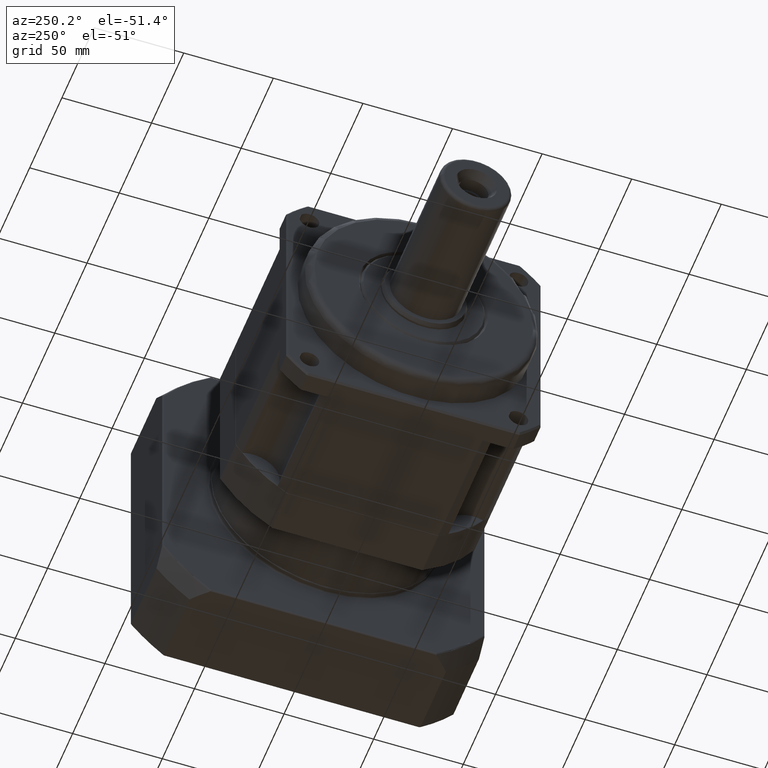
[diagram: clean part render]
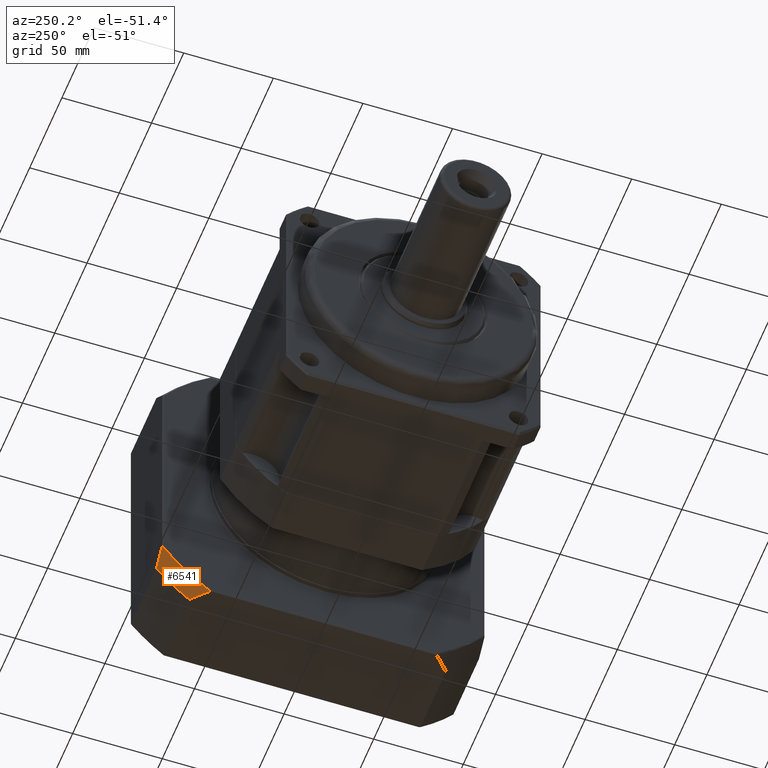
[diagram: same view with one face highlighted and labeled with its STEP entity id]
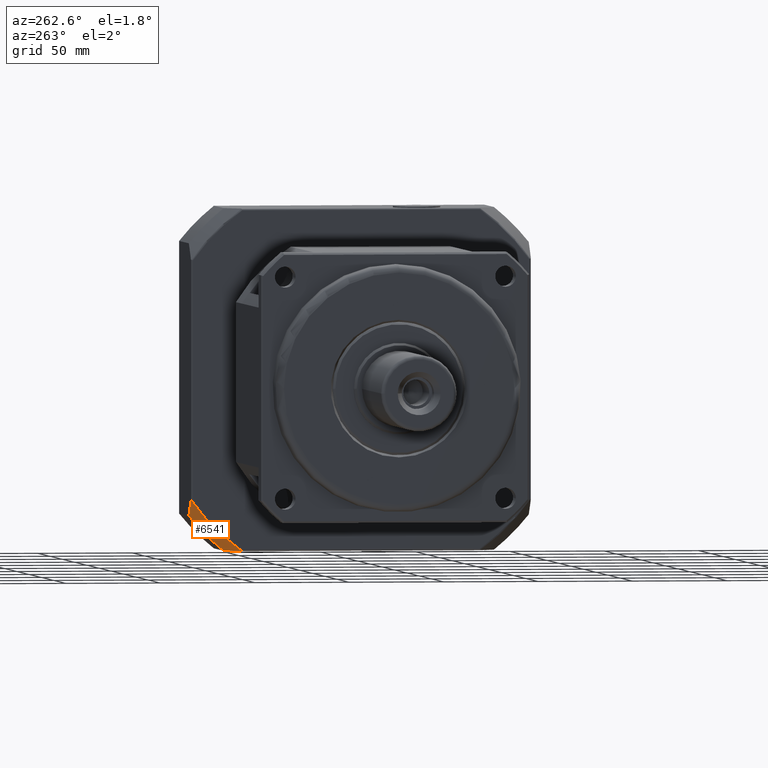
[diagram: same view with one face highlighted and labeled with its STEP entity id]
A machine part, auxiliary view. The second image highlights one B-rep face of the part: STEP entity #6541.
A second angle (auxiliary view) of the same face is appended — the face is thin or edge-on in the first view.
In plain terms, the highlighted spherical surface has radius 130 mm.
Its self-contained STEP definition (entity closure, byte-faithful):
#25=SPHERICAL_SURFACE('',#7149,130.);
#27=B_SPLINE_CURVE_WITH_KNOTS('',3,(#10120,#10121,#10122,#10123,#10124,
#10125,#10126,#10127),.UNSPECIFIED.,.F.,.F.,(4,2,2,4),(0.0211718495459848,
0.034748462194787,0.0605096120079839,0.0862707618211808),.UNSPECIFIED.);
#33=B_SPLINE_CURVE_WITH_KNOTS('',3,(#10189,#10190,#10191,#10192,#10193,
#10194,#10195,#10196),.UNSPECIFIED.,.F.,.F.,(4,2,2,4),(0.839504231662838,
0.857445983036212,0.896820534025772,0.905275651885143),.UNSPECIFIED.);
#1733=FACE_OUTER_BOUND('',#2260,.T.);
#2260=EDGE_LOOP('',(#5040,#5041,#5042,#5043,#5044,#5045));
#2753=CIRCLE('',#7040,109.840338427723);
#2820=CIRCLE('',#7150,93.8083151964686);
#2821=CIRCLE('',#7151,115.);
#2822=CIRCLE('',#7152,93.8083151964686);
#3184=VERTEX_POINT('',#10108);
#3185=VERTEX_POINT('',#10119);
#3189=VERTEX_POINT('',#10152);
#3193=VERTEX_POINT('',#10187);
#3284=VERTEX_POINT('',#10615);
#3285=VERTEX_POINT('',#10617);
#3822=EDGE_CURVE('',#3184,#3185,#27,.T.);
#3828=EDGE_CURVE('',#3189,#3184,#2753,.T.);
#3833=EDGE_CURVE('',#3193,#3189,#33,.T.);
#3959=EDGE_CURVE('',#3284,#3193,#2820,.T.);
#3960=EDGE_CURVE('',#3285,#3284,#2821,.T.);
#3961=EDGE_CURVE('',#3185,#3285,#2822,.T.);
#5040=ORIENTED_EDGE('',*,*,#3833,.F.);
#5041=ORIENTED_EDGE('',*,*,#3959,.F.);
#5042=ORIENTED_EDGE('',*,*,#3960,.F.);
#5043=ORIENTED_EDGE('',*,*,#3961,.F.);
#5044=ORIENTED_EDGE('',*,*,#3822,.F.);
#5045=ORIENTED_EDGE('',*,*,#3828,.F.);
#6541=ADVANCED_FACE('',(#1733),#25,.T.);
#7040=AXIS2_PLACEMENT_3D('',#10163,#8108,#8109);
#7149=AXIS2_PLACEMENT_3D('',#10614,#8358,#8359);
#7150=AXIS2_PLACEMENT_3D('',#10616,#8360,#8361);
#7151=AXIS2_PLACEMENT_3D('',#10618,#8362,#8363);
#7152=AXIS2_PLACEMENT_3D('',#10619,#8364,#8365);
#8108=DIRECTION('center_axis',(-1.,5.21329617097221E-16,1.24115431662697E-16));
#8109=DIRECTION('ref_axis',(2.80872844104243E-16,0.707106781186549,-0.707106781186546));
#8358=DIRECTION('center_axis',(-5.46571335200077E-17,1.74902827264025E-15,
-1.));
#8359=DIRECTION('ref_axis',(1.,-4.37257068160062E-16,-1.09314267040015E-16));
#8360=DIRECTION('center_axis',(5.21329617097221E-16,1.,1.84555303138583E-15));
#8361=DIRECTION('ref_axis',(-1.24115431662696E-16,1.84555303138583E-15,
-1.));
#8362=DIRECTION('center_axis',(1.,-5.21329617097221E-16,-1.24115431662697E-16));
#8363=DIRECTION('ref_axis',(-1.24115431662696E-16,1.74686654030804E-15,
-1.));
#8364=DIRECTION('center_axis',(-1.24115431662696E-16,1.74686654030804E-15,
-1.));
#8365=DIRECTION('ref_axis',(-5.21329617097221E-16,-1.,-1.74686654030804E-15));
#10108=CARTESIAN_POINT('',(-110.094268993767,-87.1214828898302,-166.847451673145));
#10119=CARTESIAN_POINT('',(-109.559385272837,-86.7568772144364,-167.002525992932));
#10120=CARTESIAN_POINT('Ctrl Pts',(-110.094268993767,-87.1214828898306,
-166.847451673145));
#10121=CARTESIAN_POINT('Ctrl Pts',(-110.054001666619,-87.1134163765778,
-166.872943072308));
#10122=CARTESIAN_POINT('Ctrl Pts',(-110.013022003302,-87.0993099899785,
-166.894697400477));
#10123=CARTESIAN_POINT('Ctrl Pts',(-109.902579516352,-87.0498027171188,
-166.945150171179));
#10124=CARTESIAN_POINT('Ctrl Pts',(-109.827328411309,-87.0008510130124,
-166.968695792484));
#10125=CARTESIAN_POINT('Ctrl Pts',(-109.684873354123,-86.8858750877965,
-166.997277373673));
#10126=CARTESIAN_POINT('Ctrl Pts',(-109.617560699758,-86.820038613771,-167.002525992932));
#10127=CARTESIAN_POINT('Ctrl Pts',(-109.559385272837,-86.7568772144364,
-167.002525992932));
#10152=CARTESIAN_POINT('',(-110.094268993767,-60.4650789159657,-140.191047699281));
#10163=CARTESIAN_POINT('Origin',(-110.094268993767,-150.310004596179,-77.0025259929324));
#10187=CARTESIAN_POINT('',(-109.559385272837,-60.310004596179,-140.555653374675));
#10189=CARTESIAN_POINT('Ctrl Pts',(-109.559385272837,-60.310004596179,-140.555653374675));
#10190=CARTESIAN_POINT('Ctrl Pts',(-109.600570622851,-60.310004596179,-140.510938200646));
#10191=CARTESIAN_POINT('Ctrl Pts',(-109.643080716655,-60.3125218319665,
-140.468262391948));
#10192=CARTESIAN_POINT('Ctrl Pts',(-109.783950672235,-60.3306727099776,
-140.340481475778));
#10193=CARTESIAN_POINT('Ctrl Pts',(-109.909512362339,-60.3649956261995,
-140.251814212088));
#10194=CARTESIAN_POINT('Ctrl Pts',(-110.044277084751,-60.4350184851103,
-140.20329715709));
#10195=CARTESIAN_POINT('Ctrl Pts',(-110.069260737018,-60.4492473348723,
-140.196057454057));
#10196=CARTESIAN_POINT('Ctrl Pts',(-110.094268993767,-60.4650789159657,
-140.191047699281));
#10614=CARTESIAN_POINT('Origin',(-40.5593852728371,-150.310004596179,-77.0025259929324));
#10615=CARTESIAN_POINT('',(-101.181163537748,-60.310004596179,-148.591631309314));
#10616=CARTESIAN_POINT('Origin',(-40.559385272837,-60.3100045961792,-77.0025259929322));
#10617=CARTESIAN_POINT('',(-101.181163537748,-78.7208992797972,-167.002525992932));
#10618=CARTESIAN_POINT('Origin',(-101.181163537748,-150.310004596179,-77.0025259929324));
#10619=CARTESIAN_POINT('Origin',(-40.5593852728371,-150.310004596179,-167.002525992932));